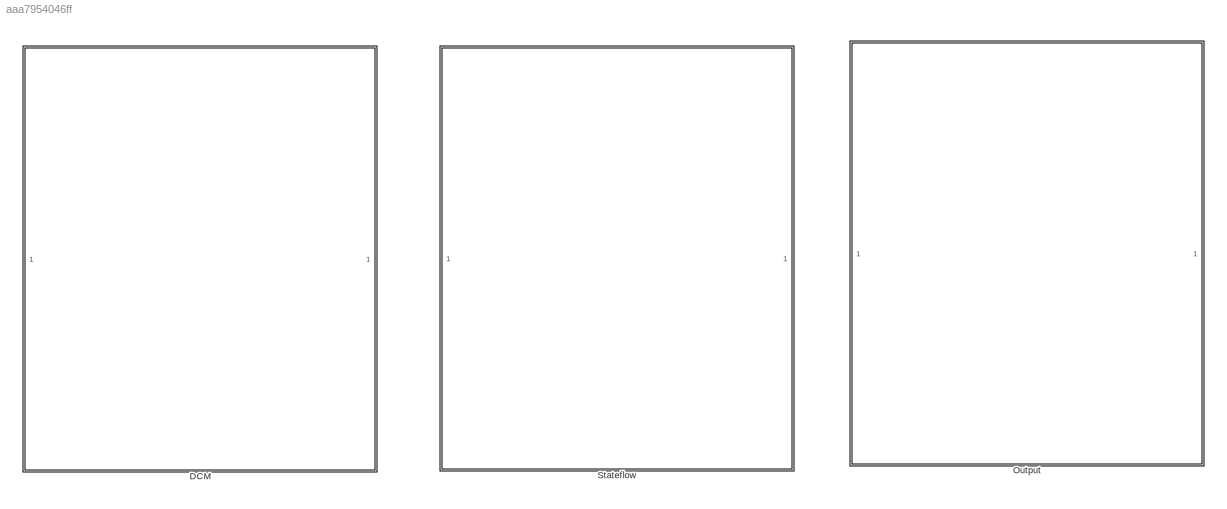
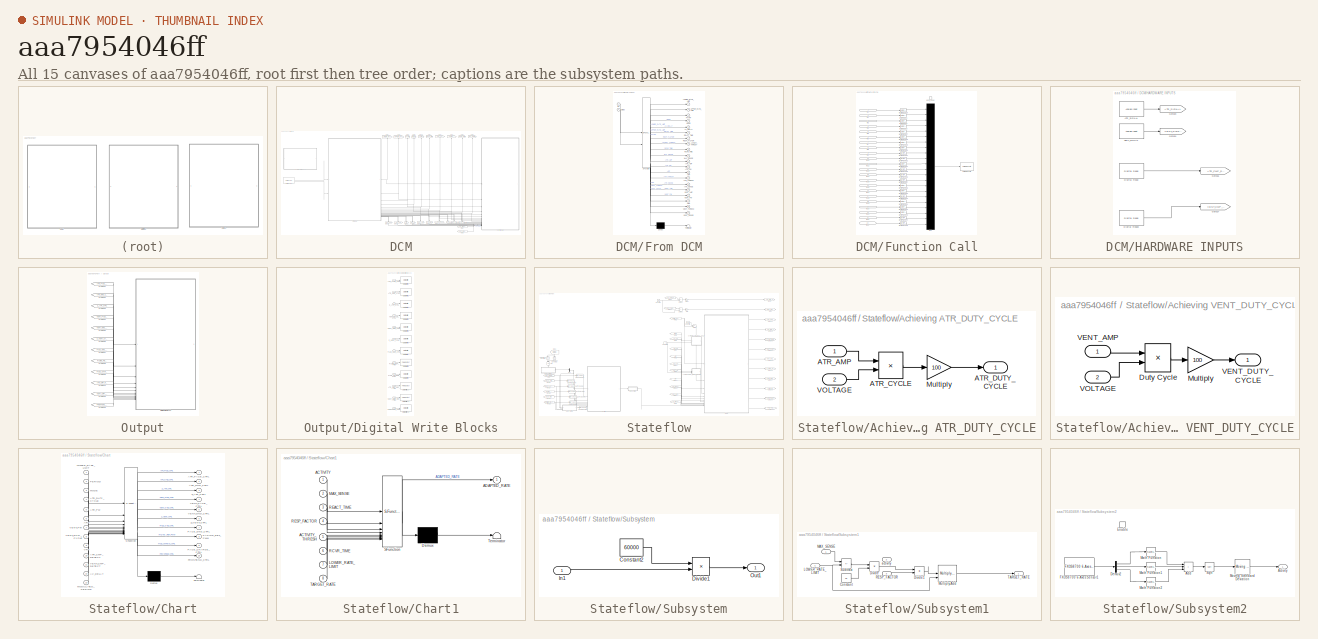
[diagram: thumbnail index - all 15 canvases of the model, root first then tree order]
MODEL slx_aaa7954046ff
KIND model
CONFIG AbsTol = auto
CONFIG EnableMultiTasking = on
CONFIG FixedStep = 1e-3
CONFIG MaxStep = auto
CONFIG MinStep = auto
CONFIG RelTol = 1e-3
CONFIG SampleTimeConstraint = Unconstrained
CONFIG SolverName = FixedStepAuto
CONFIG StartTime = 0.0
CONFIG StopTime = 10.0
BLOCK [SubSystem] DCM
BLOCK [SubSystem] DCM/From DCM
  ErrorFcn = Stateflow.Translate.translate
  PermitHierarchicalResolution = ExplicitOnly
  SFBlockType = Chart
  TreatAsAtomicUnit = on
BLOCK [Demux] DCM/From DCM/ Demux 
  Outputs = 1
BLOCK [S-Function] DCM/From DCM/ SFunction 
  EnableBusSupport = on
  FunctionName = sf_sfun
  PortCounts = [2 21]
  SFcnIsStateOwnerBlock = off
  SFunctionDeploymentMode = off
  Tag = Stateflow S-Function 1
BLOCK [Terminator] DCM/From DCM/ Terminator 
BLOCK [Outport] DCM/From DCM/ACTIVITY_THRESH
  Port = 8
BLOCK [Outport] DCM/From DCM/ARP
  Port = 13
BLOCK [Outport] DCM/From DCM/ATR_AMP
  Port = 11
BLOCK [Outport] DCM/From DCM/ATR_PW
  Port = 12
BLOCK [Outport] DCM/From DCM/ATR_SENSE
  Port = 15
BLOCK [Outport] DCM/From DCM/ATR_THRESH
  Port = 14
BLOCK [Outport] DCM/From DCM/AV_DELAY
  Port = 5
BLOCK [Outport] DCM/From DCM/LOWER_RATE_LIMIT
BLOCK [Outport] DCM/From DCM/MAX_SENSE
  Port = 10
BLOCK [Outport] DCM/From DCM/MODE
  Port = 4
BLOCK [Outport] DCM/From DCM/PVARP
  Port = 3
BLOCK [Outport] DCM/From DCM/RCVR_TIME
  Port = 9
BLOCK [Outport] DCM/From DCM/REACT_TIME
  Port = 6
BLOCK [Outport] DCM/From DCM/RESP_FACTOR
  Port = 7
BLOCK [Inport] DCM/From DCM/Rx
BLOCK [Inport] DCM/From DCM/Status
  Port = 2
BLOCK [Outport] DCM/From DCM/UPPER_RATE_LIMIT
  Port = 2
BLOCK [Outport] DCM/From DCM/VENT_AMP
  Port = 16
BLOCK [Outport] DCM/From DCM/VENT_PW
  Port = 17
BLOCK [Outport] DCM/From DCM/VENT_SENSE
  Port = 20
BLOCK [Outport] DCM/From DCM/VENT_THRESH
  Port = 19
BLOCK [Outport] DCM/From DCM/VRP
  Port = 18
BLOCK [From] DCM/From6
  GotoTag = VENT_SIGNAL
  TagVisibility = global
BLOCK [From] DCM/From7
  GotoTag = ATR_SIGNAL
  TagVisibility = global
BLOCK [SubSystem] DCM/Function Call
  TreatAsAtomicUnit = on
BLOCK [Reference] DCM/Function Call/Byte Pack 1  REF=etargetslib/Byte Pack
  SourceBlock = etargetslib/Byte Pack
  SourceType = Byte pack
BLOCK [Reference] DCM/Function Call/Byte Pack 2  REF=etargetslib/Byte Pack
  SourceBlock = etargetslib/Byte Pack
  SourceType = Byte pack
BLOCK [Reference] DCM/Function Call/Byte Pack 3  REF=etargetslib/Byte Pack
  SourceBlock = etargetslib/Byte Pack
  SourceType = Byte pack
BLOCK [Reference] DCM/Function Call/Byte Pack26  REF=etargetslib/Byte Pack
  SourceBlock = etargetslib/Byte Pack
  SourceType = Byte pack
BLOCK [Reference] DCM/Function Call/Byte Pack27  REF=etargetslib/Byte Pack
  SourceBlock = etargetslib/Byte Pack
  SourceType = Byte pack
BLOCK [Reference] DCM/Function Call/Byte Pack28  REF=etargetslib/Byte Pack
  SourceBlock = etargetslib/Byte Pack
  SourceType = Byte pack
BLOCK [Reference] DCM/Function Call/Byte Pack29  REF=etargetslib/Byte Pack
  SourceBlock = etargetslib/Byte Pack
  SourceType = Byte pack
BLOCK [Reference] DCM/Function Call/Byte Pack30  REF=etargetslib/Byte Pack
  SourceBlock = etargetslib/Byte Pack
  SourceType = Byte pack
BLOCK [Reference] DCM/Function Call/Byte Pack31  REF=etargetslib/Byte Pack
  SourceBlock = etargetslib/Byte Pack
  SourceType = Byte pack
BLOCK [Reference] DCM/Function Call/Byte Pack32  REF=etargetslib/Byte Pack
  SourceBlock = etargetslib/Byte Pack
  SourceType = Byte pack
BLOCK [Reference] DCM/Function Call/Byte Pack34  REF=etargetslib/Byte Pack
  SourceBlock = etargetslib/Byte Pack
  SourceType = Byte pack
BLOCK [Reference] DCM/Function Call/Byte Pack35  REF=etargetslib/Byte Pack
  SourceBlock = etargetslib/Byte Pack
  SourceType = Byte pack
BLOCK [Reference] DCM/Function Call/Byte Pack36  REF=etargetslib/Byte Pack
  SourceBlock = etargetslib/Byte Pack
  SourceType = Byte pack
BLOCK [Reference] DCM/Function Call/Byte Pack37  REF=etargetslib/Byte Pack
  SourceBlock = etargetslib/Byte Pack
  SourceType = Byte pack
BLOCK [Reference] DCM/Function Call/Byte Pack38  REF=etargetslib/Byte Pack
  SourceBlock = etargetslib/Byte Pack
  SourceType = Byte pack
BLOCK [Reference] DCM/Function Call/Byte Pack39  REF=etargetslib/Byte Pack
  SourceBlock = etargetslib/Byte Pack
  SourceType = Byte pack
BLOCK [Reference] DCM/Function Call/Byte Pack40  REF=etargetslib/Byte Pack
  SourceBlock = etargetslib/Byte Pack
  SourceType = Byte pack
BLOCK [Reference] DCM/Function Call/Byte Pack41  REF=etargetslib/Byte Pack
  SourceBlock = etargetslib/Byte Pack
  SourceType = Byte pack
BLOCK [Reference] DCM/Function Call/Byte Pack42  REF=etargetslib/Byte Pack
  SourceBlock = etargetslib/Byte Pack
  SourceType = Byte pack
BLOCK [Reference] DCM/Function Call/Byte Pack43  REF=etargetslib/Byte Pack
  SourceBlock = etargetslib/Byte Pack
  SourceType = Byte pack
BLOCK [Reference] DCM/Function Call/Byte Pack44  REF=etargetslib/Byte Pack
  SourceBlock = etargetslib/Byte Pack
  SourceType = Byte pack
BLOCK [Reference] DCM/Function Call/Byte Pack45  REF=etargetslib/Byte Pack
  SourceBlock = etargetslib/Byte Pack
  SourceType = Byte pack
BLOCK [Inport] DCM/Function Call/In1
  IconDisplay = Signal name
BLOCK [Inport] DCM/Function Call/In10
  IconDisplay = Signal name
  Port = 10
BLOCK [Inport] DCM/Function Call/In11
  IconDisplay = Signal name
  Port = 21
BLOCK [Inport] DCM/Function Call/In12
  IconDisplay = Signal name
  Port = 11
BLOCK [Inport] DCM/Function Call/In13
  IconDisplay = Signal name
  Port = 12
BLOCK [Inport] DCM/Function Call/In14
  IconDisplay = Signal name
  Port = 13
BLOCK [Inport] DCM/Function Call/In15
  IconDisplay = Signal name
  Port = 14
BLOCK [Inport] DCM/Function Call/In16
  IconDisplay = Signal name
  Port = 15
BLOCK [Inport] DCM/Function Call/In17
  IconDisplay = Signal name
  Port = 16
BLOCK [Inport] DCM/Function Call/In18
  IconDisplay = Signal name
  Port = 17
BLOCK [Inport] DCM/Function Call/In19
  IconDisplay = Signal name
  Port = 18
BLOCK [Inport] DCM/Function Call/In2
  IconDisplay = Signal name
  Port = 2
BLOCK [Inport] DCM/Function Call/In20
  IconDisplay = Signal name
  Port = 19
BLOCK [Inport] DCM/Function Call/In21
  IconDisplay = Signal name
  Port = 20
BLOCK [Inport] DCM/Function Call/In22
  IconDisplay = Signal name
  Port = 22
BLOCK [Inport] DCM/Function Call/In3
  IconDisplay = Signal name
  Port = 3
BLOCK [Inport] DCM/Function Call/In4
  IconDisplay = Signal name
  Port = 4
BLOCK [Inport] DCM/Function Call/In5
  IconDisplay = Signal name
  Port = 5
BLOCK [Inport] DCM/Function Call/In6
  IconDisplay = Signal name
  Port = 6
BLOCK [Inport] DCM/Function Call/In7
  IconDisplay = Signal name
  Port = 7
BLOCK [Inport] DCM/Function Call/In8
  IconDisplay = Signal name
  Port = 8
BLOCK [Inport] DCM/Function Call/In9
  IconDisplay = Signal name
  Port = 9
BLOCK [Mux] DCM/Function Call/Mux
  DisplayOption = bar
  Inputs = 22
BLOCK [Reference] DCM/Function Call/Serial Transmit  REF=frdmk64flib/Serial Transmit
  SourceBlock = frdmk64flib/Serial Transmit
  SourceType = freedomk64f.SCIWrite
BLOCK [TriggerPort] DCM/Function Call/dcm_send
  FunctionName = dcm_send
  IsSimulinkFunction = on
  StatesWhenEnabling = held
  TriggerType = function-call
  VariantControl = Variant
BLOCK [Goto] DCM/Goto 1
  GotoTag = REACT_TIME
  IconDisplay = Signal name
  NameLocation = right
  TagVisibility = global
BLOCK [Goto] DCM/Goto 2
  GotoTag = ACTIVITY_THRESH
  IconDisplay = Signal name
  NameLocation = right
  TagVisibility = global
BLOCK [Goto] DCM/Goto 25
  GotoTag = AV_DELAY
  IconDisplay = Signal name
  NameLocation = right
  TagVisibility = global
BLOCK [Goto] DCM/Goto 3
  GotoTag = RESP_FACTOR
  IconDisplay = Signal name
  NameLocation = right
  TagVisibility = global
BLOCK [Goto] DCM/Goto 4
  GotoTag = RCVR_TIME
  IconDisplay = Signal name
  NameLocation = right
  TagVisibility = global
BLOCK [Goto] DCM/Goto 6
  GotoTag = MAX_SENSE
  IconDisplay = Signal name
  NameLocation = right
  TagVisibility = global
BLOCK [Goto] DCM/Goto1
  GotoTag = LOWER_RATE_LIMIT
  IconDisplay = Signal name
  NameLocation = right
  TagVisibility = global
BLOCK [Goto] DCM/Goto10
  GotoTag = VENT_PW
  IconDisplay = Signal name
  NameLocation = left
  TagVisibility = global
BLOCK [Goto] DCM/Goto11
  GotoTag = VRP
  IconDisplay = Signal name
  NameLocation = left
  TagVisibility = global
BLOCK [Goto] DCM/Goto12
  GotoTag = ATR_THRESH
  IconDisplay = Signal name
  NameLocation = left
  TagVisibility = global
BLOCK [Goto] DCM/Goto13
  GotoTag = VENT_THRESH
  IconDisplay = Signal name
  NameLocation = left
  TagVisibility = global
BLOCK [Goto] DCM/Goto15
  GotoTag = ATR_SENSE
  IconDisplay = Signal name
  NameLocation = left
  TagVisibility = global
BLOCK [Goto] DCM/Goto18
  GotoTag = VENT_SENSE
  IconDisplay = Signal name
  NameLocation = left
  TagVisibility = global
BLOCK [Goto] DCM/Goto2
  GotoTag = UPPER_RATE_LIMIT
  IconDisplay = Signal name
  NameLocation = right
  TagVisibility = global
BLOCK [Goto] DCM/Goto3
  GotoTag = PVARP
  IconDisplay = Signal name
  NameLocation = right
  TagVisibility = global
BLOCK [Goto] DCM/Goto5
  GotoTag = MODE
  IconDisplay = Signal name
  NameLocation = right
  TagVisibility = global
BLOCK [Goto] DCM/Goto6
  GotoTag = ATR_AMP
  IconDisplay = Signal name
  NameLocation = left
  TagVisibility = global
BLOCK [Goto] DCM/Goto7
  GotoTag = ATR_PW
  IconDisplay = Signal name
  NameLocation = left
  TagVisibility = global
BLOCK [Goto] DCM/Goto8
  GotoTag = ARP
  IconDisplay = Signal name
  NameLocation = left
  TagVisibility = global
BLOCK [Goto] DCM/Goto9
  GotoTag = VENT_AMP
  IconDisplay = Signal name
  NameLocation = left
  TagVisibility = global
BLOCK [SubSystem] DCM/HARDWARE INPUTS
BLOCK [Reference] DCM/HARDWARE INPUTS/ATR_SIGNAL  REF=frdmk64flib/Analog Input
  SourceBlock = frdmk64flib/Analog Input
  SourceType = freedomk64f.AnalogInput
BLOCK [Reference] DCM/HARDWARE INPUTS/Digital Read  REF=frdmk64flib/Digital Read
  SourceBlock = frdmk64flib/Digital Read
  SourceType = freedomk64f.DigitalRead
BLOCK [Reference] DCM/HARDWARE INPUTS/Digital Read3  REF=frdmk64flib/Digital Read
  SourceBlock = frdmk64flib/Digital Read
  SourceType = freedomk64f.DigitalRead
BLOCK [Goto] DCM/HARDWARE INPUTS/Goto16
  GotoTag = ATR_CMP_DETECT
  TagVisibility = global
BLOCK [Goto] DCM/HARDWARE INPUTS/Goto17
  GotoTag = VENT_CMP_DETECT
  TagVisibility = global
BLOCK [Goto] DCM/HARDWARE INPUTS/Goto23
  GotoTag = ATR_SIGNAL
  TagVisibility = global
BLOCK [Goto] DCM/HARDWARE INPUTS/Goto24
  GotoTag = VENT_SIGNAL
  TagVisibility = global
BLOCK [Reference] DCM/HARDWARE INPUTS/VENT_SIGNAL  REF=frdmk64flib/Analog Input
  SourceBlock = frdmk64flib/Analog Input
  SourceType = freedomk64f.AnalogInput
BLOCK [Reference] DCM/Serial Receive  REF=frdmk64flib/Serial Receive
  SourceBlock = frdmk64flib/Serial Receive
  SourceType = freedomk64f.SCIRead
BLOCK [SubSystem] Output
BLOCK [SubSystem] Output/Digital Write Blocks
BLOCK [Inport] Output/Digital Write Blocks/ATR_CMP_REF_PWM
  Port = 10
BLOCK [Inport] Output/Digital Write Blocks/ATR_GND_CTRL
  Port = 2
BLOCK [Inport] Output/Digital Write Blocks/ATR_PACE_CTRL
BLOCK [Reference] Output/Digital Write Blocks/Digital Write 1  REF=frdmk64flib/Digital Write
  SourceBlock = frdmk64flib/Digital Write
  SourceType = freedomk64f.DigitalWrite
BLOCK [Reference] Output/Digital Write Blocks/Digital Write 10  REF=frdmk64flib/PWM Output
  SourceBlock = frdmk64flib/PWM Output
  SourceType = freedomk64f.PWMOutput
BLOCK [Reference] Output/Digital Write Blocks/Digital Write 11  REF=frdmk64flib/PWM Output
  SourceBlock = frdmk64flib/PWM Output
  SourceType = freedomk64f.PWMOutput
BLOCK [Reference] Output/Digital Write Blocks/Digital Write 12  REF=frdmk64flib/Digital Write
  SourceBlock = frdmk64flib/Digital Write
  SourceType = freedomk64f.DigitalWrite
BLOCK [Reference] Output/Digital Write Blocks/Digital Write 2  REF=frdmk64flib/Digital Write
  SourceBlock = frdmk64flib/Digital Write
  SourceType = freedomk64f.DigitalWrite
BLOCK [Reference] Output/Digital Write Blocks/Digital Write 3  REF=frdmk64flib/Digital Write
  SourceBlock = frdmk64flib/Digital Write
  SourceType = freedomk64f.DigitalWrite
BLOCK [Reference] Output/Digital Write Blocks/Digital Write 4  REF=frdmk64flib/Digital Write
  SourceBlock = frdmk64flib/Digital Write
  SourceType = freedomk64f.DigitalWrite
BLOCK [Reference] Output/Digital Write Blocks/Digital Write 5  REF=frdmk64flib/Digital Write
  SourceBlock = frdmk64flib/Digital Write
  SourceType = freedomk64f.DigitalWrite
BLOCK [Reference] Output/Digital Write Blocks/Digital Write 6  REF=frdmk64flib/Digital Write
  SourceBlock = frdmk64flib/Digital Write
  SourceType = freedomk64f.DigitalWrite
BLOCK [Reference] Output/Digital Write Blocks/Digital Write 7  REF=frdmk64flib/Digital Write
  SourceBlock = frdmk64flib/Digital Write
  SourceType = freedomk64f.DigitalWrite
BLOCK [Reference] Output/Digital Write Blocks/Digital Write 8  REF=frdmk64flib/PWM Output
  SourceBlock = frdmk64flib/PWM Output
  SourceType = freedomk64f.PWMOutput
BLOCK [Reference] Output/Digital Write Blocks/Digital Write 9  REF=frdmk64flib/Digital Write
  SourceBlock = frdmk64flib/Digital Write
  SourceType = freedomk64f.DigitalWrite
BLOCK [Inport] Output/Digital Write Blocks/FRONTEND_CTRL
  Port = 12
BLOCK [Inport] Output/Digital Write Blocks/PACE_CHARGE_CTRL
  Port = 9
BLOCK [Inport] Output/Digital Write Blocks/PACE_GND_CTRL
  Port = 7
BLOCK [Inport] Output/Digital Write Blocks/PACING_REF_PWM
  Port = 8
BLOCK [Inport] Output/Digital Write Blocks/VENT_CMP_REF_PWM
  OutDataTypeStr = double
  Port = 11
BLOCK [Inport] Output/Digital Write Blocks/VENT_GND_CTRL
  Port = 5
BLOCK [Inport] Output/Digital Write Blocks/VENT_PACE_CTRL
  Port = 4
BLOCK [Inport] Output/Digital Write Blocks/Z_ATR_CTRL
  Port = 3
BLOCK [Inport] Output/Digital Write Blocks/Z_VENT_CTRL
  Port = 6
BLOCK [From] Output/From101
  GotoTag = ATR_PACE_CTRL
  TagVisibility = global
BLOCK [From] Output/From102
  GotoTag = ATR_GND_CTRL
  TagVisibility = global
BLOCK [From] Output/From103
  GotoTag = Z_ATR_CTRL
  TagVisibility = global
BLOCK [From] Output/From104
  GotoTag = VENT_PACE_CTRL
  TagVisibility = global
BLOCK [From] Output/From105
  GotoTag = VENT_GND_CTRL
  TagVisibility = global
BLOCK [From] Output/From106
  GotoTag = Z_VENT_CTRL
  TagVisibility = global
BLOCK [From] Output/From107
  GotoTag = PACE_GND_CTRL
  TagVisibility = global
BLOCK [From] Output/From108
  GotoTag = PACING_REF_PWM
  TagVisibility = global
BLOCK [From] Output/From109
  GotoTag = PACE_CHARGE_CTRL
  TagVisibility = global
BLOCK [From] Output/From114
  GotoTag = ATR_CMP_REF_PWM
  TagVisibility = global
BLOCK [From] Output/From115
  GotoTag = VENT_CMP_REF_PWM
  TagVisibility = global
BLOCK [From] Output/From116
  GotoTag = FRONTEND_CTRL
  TagVisibility = global
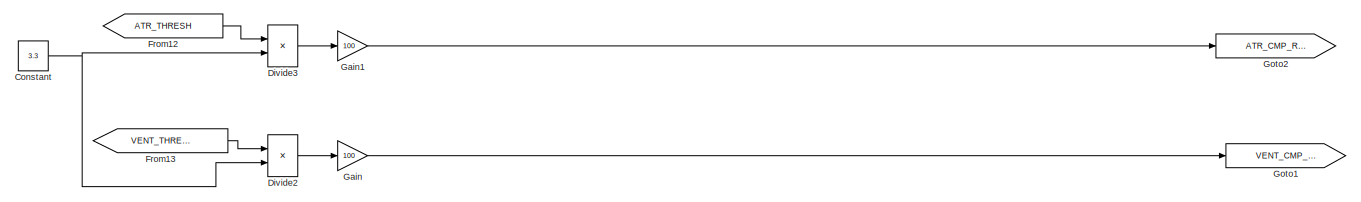
[diagram: Stateflow - part 1/4, top right region]
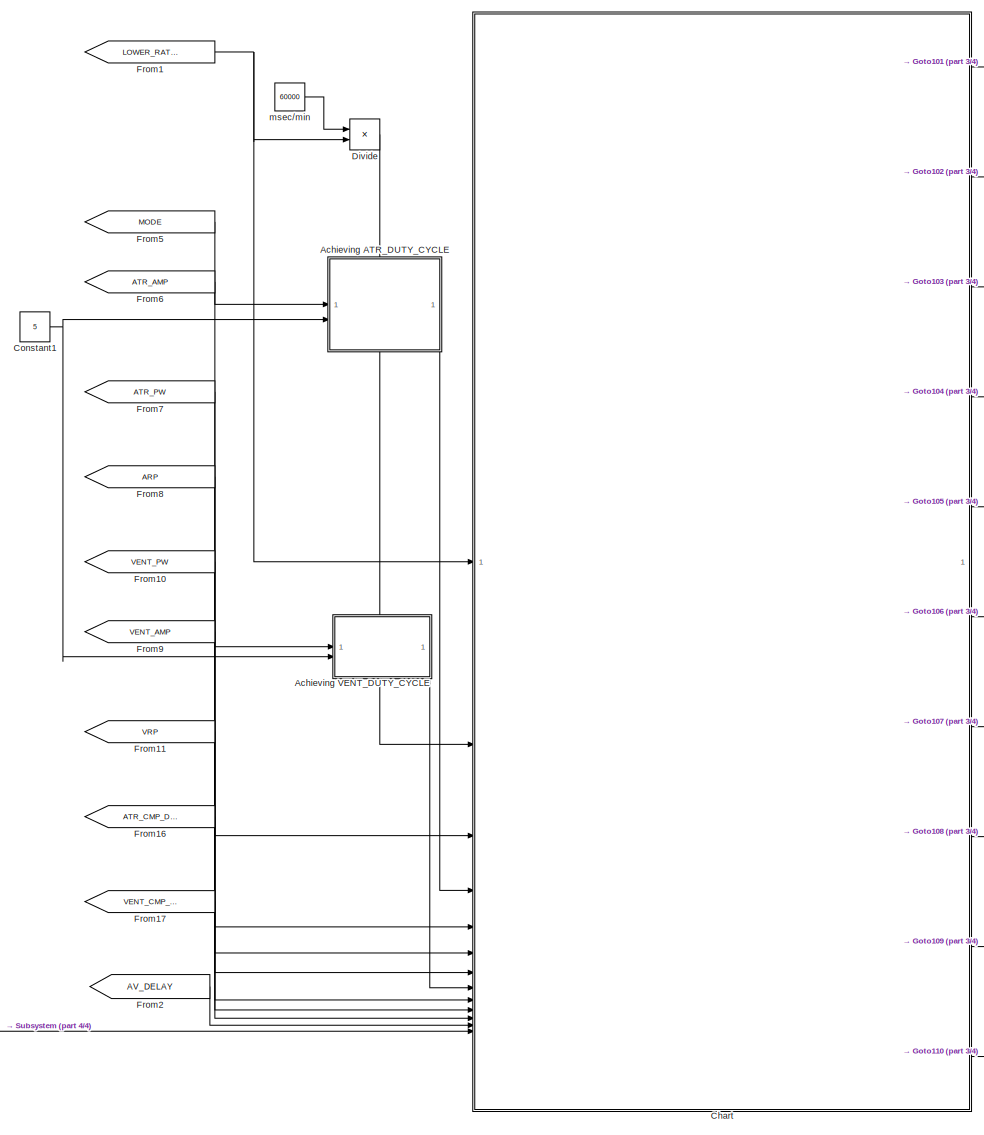
[diagram: Stateflow - part 2/4, right side, full height]
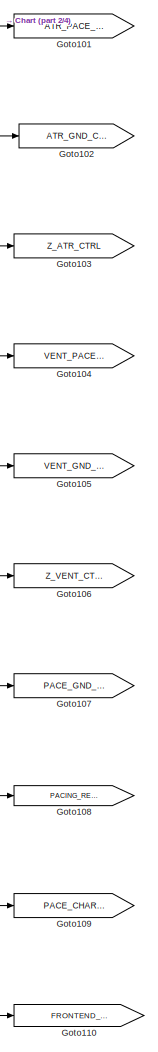
[diagram: Stateflow - part 3/4, right side, full height]
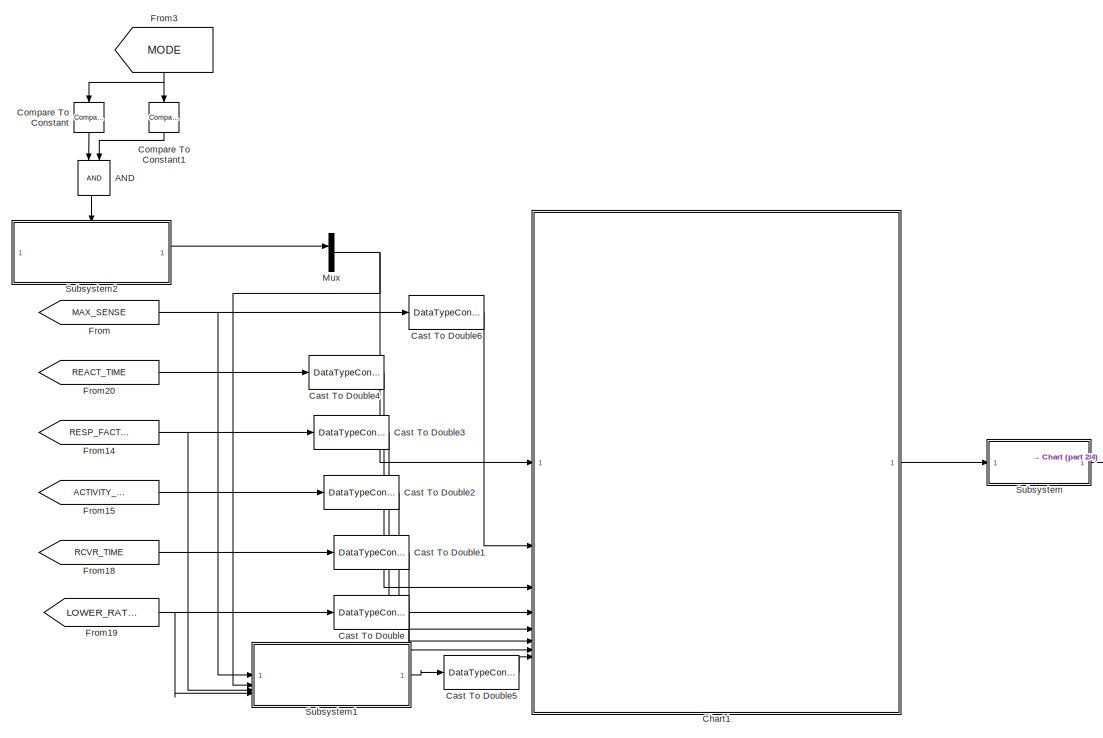
[diagram: Stateflow - part 4/4, bottom left region]
BLOCK [SubSystem] Stateflow
BLOCK [Logic] Stateflow/AND
  AllPortsSameDT = off
  IconShape = distinctive
  NameLocation = left
  OutDataTypeStr = boolean
BLOCK [SubSystem] Stateflow/Achieving ATR_DUTY_CYCLE
BLOCK [Inport] Stateflow/Achieving ATR_DUTY_CYCLE/ATR_AMP
BLOCK [Product] Stateflow/Achieving ATR_DUTY_CYCLE/ATR_CYCLE
  Inputs = */
BLOCK [Outport] Stateflow/Achieving ATR_DUTY_CYCLE/ATR_DUTY_CYCLE
  VectorParamsAs1DForOutWhenUnconnected = off
BLOCK [Gain] Stateflow/Achieving ATR_DUTY_CYCLE/Multiply
  Gain = 100
BLOCK [Inport] Stateflow/Achieving ATR_DUTY_CYCLE/VOLTAGE
  Port = 2
BLOCK [SubSystem] Stateflow/Achieving VENT_DUTY_CYCLE
BLOCK [Product] Stateflow/Achieving VENT_DUTY_CYCLE/Duty Cycle
  Inputs = */
BLOCK [Gain] Stateflow/Achieving VENT_DUTY_CYCLE/Multiply
  Gain = 100
BLOCK [Inport] Stateflow/Achieving VENT_DUTY_CYCLE/VENT_AMP
BLOCK [Outport] Stateflow/Achieving VENT_DUTY_CYCLE/VENT_DUTY_CYCLE
  VectorParamsAs1DForOutWhenUnconnected = off
BLOCK [Inport] Stateflow/Achieving VENT_DUTY_CYCLE/VOLTAGE
  Port = 2
BLOCK [DataTypeConversion] Stateflow/Cast To Double
  OutDataTypeStr = double
  RndMeth = Floor
  SaturateOnIntegerOverflow = off
BLOCK [DataTypeConversion] Stateflow/Cast To Double1
  OutDataTypeStr = double
  RndMeth = Floor
  SaturateOnIntegerOverflow = off
BLOCK [DataTypeConversion] Stateflow/Cast To Double2
  OutDataTypeStr = double
  RndMeth = Floor
  SaturateOnIntegerOverflow = off
BLOCK [DataTypeConversion] Stateflow/Cast To Double3
  OutDataTypeStr = double
  RndMeth = Floor
  SaturateOnIntegerOverflow = off
BLOCK [DataTypeConversion] Stateflow/Cast To Double4
  OutDataTypeStr = double
  RndMeth = Floor
  SaturateOnIntegerOverflow = off
BLOCK [DataTypeConversion] Stateflow/Cast To Double5
  OutDataTypeStr = double
  RndMeth = Floor
  SaturateOnIntegerOverflow = off
BLOCK [DataTypeConversion] Stateflow/Cast To Double6
  OutDataTypeStr = double
  RndMeth = Floor
  SaturateOnIntegerOverflow = off
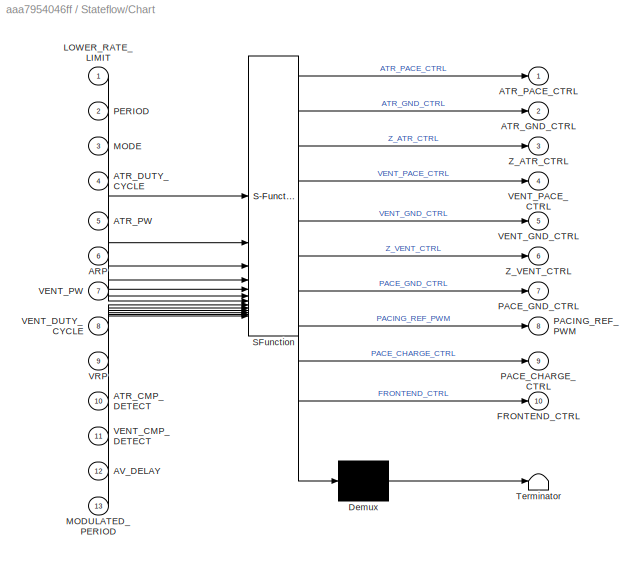
BLOCK [SubSystem] Stateflow/Chart
  ErrorFcn = Stateflow.Translate.translate
  PermitHierarchicalResolution = ExplicitOnly
  SFBlockType = Chart
  TreatAsAtomicUnit = on
BLOCK [Demux] Stateflow/Chart/ Demux 
  Outputs = 1
BLOCK [S-Function] Stateflow/Chart/ SFunction 
  EnableBusSupport = on
  FunctionName = sf_sfun
  PortCounts = [13 11]
  SFcnIsStateOwnerBlock = off
  SFunctionDeploymentMode = off
  Tag = Stateflow S-Function 3
BLOCK [Terminator] Stateflow/Chart/ Terminator 
BLOCK [Inport] Stateflow/Chart/ARP
  Port = 6
BLOCK [Inport] Stateflow/Chart/ATR_CMP_DETECT
  Port = 10
BLOCK [Inport] Stateflow/Chart/ATR_DUTY_CYCLE
  Port = 4
BLOCK [Outport] Stateflow/Chart/ATR_GND_CTRL
  Port = 2
BLOCK [Outport] Stateflow/Chart/ATR_PACE_CTRL
BLOCK [Inport] Stateflow/Chart/ATR_PW
  Port = 5
BLOCK [Inport] Stateflow/Chart/AV_DELAY
  Port = 12
BLOCK [Outport] Stateflow/Chart/FRONTEND_CTRL
  Port = 10
BLOCK [Inport] Stateflow/Chart/LOWER_RATE_LIMIT
BLOCK [Inport] Stateflow/Chart/MODE
  Port = 3
BLOCK [Inport] Stateflow/Chart/MODULATED_PERIOD
  Port = 13
BLOCK [Outport] Stateflow/Chart/PACE_CHARGE_CTRL
  Port = 9
BLOCK [Outport] Stateflow/Chart/PACE_GND_CTRL
  Port = 7
BLOCK [Outport] Stateflow/Chart/PACING_REF_PWM
  Port = 8
BLOCK [Inport] Stateflow/Chart/PERIOD
  Port = 2
BLOCK [Inport] Stateflow/Chart/VENT_CMP_DETECT
  Port = 11
BLOCK [Inport] Stateflow/Chart/VENT_DUTY_CYCLE
  Port = 8
BLOCK [Outport] Stateflow/Chart/VENT_GND_CTRL
  Port = 5
BLOCK [Outport] Stateflow/Chart/VENT_PACE_CTRL
  Port = 4
BLOCK [Inport] Stateflow/Chart/VENT_PW
  Port = 7
BLOCK [Inport] Stateflow/Chart/VRP
  Port = 9
BLOCK [Outport] Stateflow/Chart/Z_ATR_CTRL
  Port = 3
BLOCK [Outport] Stateflow/Chart/Z_VENT_CTRL
  Port = 6
BLOCK [SubSystem] Stateflow/Chart1
  ErrorFcn = Stateflow.Translate.translate
  PermitHierarchicalResolution = ExplicitOnly
  SFBlockType = Chart
  TreatAsAtomicUnit = on
BLOCK [Demux] Stateflow/Chart1/ Demux 
  Outputs = 1
BLOCK [S-Function] Stateflow/Chart1/ SFunction 
  EnableBusSupport = on
  FunctionName = sf_sfun
  PortCounts = [8 2]
  SFcnIsStateOwnerBlock = off
  SFunctionDeploymentMode = off
  Tag = Stateflow S-Function 4
BLOCK [Terminator] Stateflow/Chart1/ Terminator 
BLOCK [Inport] Stateflow/Chart1/ACTIVITY
BLOCK [Inport] Stateflow/Chart1/ACTIVITY_THRESH
  Port = 5
BLOCK [Outport] Stateflow/Chart1/ADAPTED_RATE
  VectorParamsAs1DForOutWhenUnconnected = off
BLOCK [Inport] Stateflow/Chart1/LOWER_RATE_LIMIT
  Port = 7
BLOCK [Inport] Stateflow/Chart1/MAX_SENSE
  Port = 2
BLOCK [Inport] Stateflow/Chart1/RCVR_TIME
  Port = 6
BLOCK [Inport] Stateflow/Chart1/REACT_TIME
  Port = 3
BLOCK [Inport] Stateflow/Chart1/RESP_FACTOR
  Port = 4
BLOCK [Inport] Stateflow/Chart1/TARGET_RATE
  Port = 8
BLOCK [Reference] Stateflow/Compare To Constant  REF=simulink/Logic and Bit
Operations/Compare
To Constant
  NameLocation = left
  SourceBlock = simulink/Logic and Bit\nOperations/Compare\nTo Constant
  SourceType = Compare To Constant
BLOCK [Reference] Stateflow/Compare To Constant1  REF=simulink/Logic and Bit
Operations/Compare
To Constant
  NameLocation = left
  SourceBlock = simulink/Logic and Bit\nOperations/Compare\nTo Constant
  SourceType = Compare To Constant
BLOCK [Constant] Stateflow/Constant
  Value = 3.3
BLOCK [Constant] Stateflow/Constant1
  Value = 5
BLOCK [Product] Stateflow/Divide
  Inputs = */
BLOCK [Product] Stateflow/Divide2
  Inputs = */
BLOCK [Product] Stateflow/Divide3
  Inputs = */
BLOCK [From] Stateflow/From
  GotoTag = MAX_SENSE
  TagVisibility = global
BLOCK [From] Stateflow/From1
  GotoTag = LOWER_RATE_LIMIT
  TagVisibility = global
BLOCK [From] Stateflow/From10
  GotoTag = VENT_PW
  TagVisibility = global
BLOCK [From] Stateflow/From11
  GotoTag = VRP
  TagVisibility = global
BLOCK [From] Stateflow/From12
  GotoTag = ATR_THRESH
  TagVisibility = global
BLOCK [From] Stateflow/From13
  GotoTag = VENT_THRESH
  TagVisibility = global
BLOCK [From] Stateflow/From14
  GotoTag = RESP_FACTOR
  TagVisibility = global
BLOCK [From] Stateflow/From15
  GotoTag = ACTIVITY_THRESH
  TagVisibility = global
BLOCK [From] Stateflow/From16
  GotoTag = ATR_CMP_DETECT
  TagVisibility = global
BLOCK [From] Stateflow/From17
  GotoTag = VENT_CMP_DETECT
  TagVisibility = global
BLOCK [From] Stateflow/From18
  GotoTag = RCVR_TIME
  TagVisibility = global
BLOCK [From] Stateflow/From19
  GotoTag = LOWER_RATE_LIMIT
  TagVisibility = global
BLOCK [From] Stateflow/From2
  GotoTag = AV_DELAY
  TagVisibility = global
BLOCK [From] Stateflow/From20
  GotoTag = REACT_TIME
  TagVisibility = global
BLOCK [From] Stateflow/From3
  GotoTag = MODE
  NameLocation = left
  TagVisibility = global
BLOCK [From] Stateflow/From5
  GotoTag = MODE
  TagVisibility = global
BLOCK [From] Stateflow/From6
  GotoTag = ATR_AMP
  TagVisibility = global
BLOCK [From] Stateflow/From7
  GotoTag = ATR_PW
  TagVisibility = global
BLOCK [From] Stateflow/From8
  GotoTag = ARP
  TagVisibility = global
BLOCK [From] Stateflow/From9
  GotoTag = VENT_AMP
  TagVisibility = global
BLOCK [Gain] Stateflow/Gain
  Gain = 100
BLOCK [Gain] Stateflow/Gain1
  Gain = 100
BLOCK [Goto] Stateflow/Goto1
  GotoTag = VENT_CMP_REF_PWM
  IconDisplay = Signal name
  TagVisibility = global
BLOCK [Goto] Stateflow/Goto101
  GotoTag = ATR_PACE_CTRL
  IconDisplay = Signal name
  TagVisibility = global
BLOCK [Goto] Stateflow/Goto102
  GotoTag = ATR_GND_CTRL
  IconDisplay = Signal name
  TagVisibility = global
BLOCK [Goto] Stateflow/Goto103
  GotoTag = Z_ATR_CTRL
  IconDisplay = Signal name
  TagVisibility = global
BLOCK [Goto] Stateflow/Goto104
  GotoTag = VENT_PACE_CTRL
  IconDisplay = Signal name
  TagVisibility = global
BLOCK [Goto] Stateflow/Goto105
  GotoTag = VENT_GND_CTRL
  IconDisplay = Signal name
  TagVisibility = global
BLOCK [Goto] Stateflow/Goto106
  GotoTag = Z_VENT_CTRL
  IconDisplay = Signal name
  TagVisibility = global
BLOCK [Goto] Stateflow/Goto107
  GotoTag = PACE_GND_CTRL
  IconDisplay = Signal name
  TagVisibility = global
BLOCK [Goto] Stateflow/Goto108
  GotoTag = PACING_REF_PWM
  IconDisplay = Signal name
  TagVisibility = global
BLOCK [Goto] Stateflow/Goto109
  GotoTag = PACE_CHARGE_CTRL
  IconDisplay = Signal name
  TagVisibility = global
BLOCK [Goto] Stateflow/Goto110
  GotoTag = FRONTEND_CTRL
  TagVisibility = global
BLOCK [Goto] Stateflow/Goto2
  GotoTag = ATR_CMP_REF_PWM
  IconDisplay = Signal name
  TagVisibility = global
BLOCK [Mux] Stateflow/Mux
  DisplayOption = bar
  Inputs = 1
BLOCK [SubSystem] Stateflow/Subsystem
BLOCK [Constant] Stateflow/Subsystem/Constant2
  Value = 60000
BLOCK [Product] Stateflow/Subsystem/Divide1
  Inputs = */
BLOCK [Inport] Stateflow/Subsystem/In1
BLOCK [Outport] Stateflow/Subsystem/Out1
BLOCK [SubSystem] Stateflow/Subsystem1
BLOCK [Constant] Stateflow/Subsystem1/Constant
  Value = 16
BLOCK [Product] Stateflow/Subsystem1/Divide
  Inputs = */
BLOCK [Product] Stateflow/Subsystem1/Divide1
  Inputs = */
BLOCK [Inport] Stateflow/Subsystem1/LOWER_RATE_LIMIT
  Port = 4
BLOCK [Inport] Stateflow/Subsystem1/MAX_SENSE
BLOCK [Reference] Stateflow/Subsystem1/Multiply-Add  REF=hdlsllib/HDL Operations/Multiply-Add
  SourceBlock = hdlsllib/HDL Operations/Multiply-Add
  SourceType = Multiply-Add
BLOCK [Inport] Stateflow/Subsystem1/RESP_FACTOR
  Port = 3
BLOCK [Sum] Stateflow/Subsystem1/Subtract
  IconShape = rectangular
  Inputs = +-
BLOCK [Outport] Stateflow/Subsystem1/TARGET_RATE
  OutDataTypeStr = uint16
  SourceOfInitialOutputValue = Input signal
BLOCK [Inport] Stateflow/Subsystem1/activity
  Port = 2
BLOCK [SubSystem] Stateflow/Subsystem2
BLOCK [Outport] Stateflow/Subsystem2/Activity
  SourceOfInitialOutputValue = Input signal
BLOCK [Sum] Stateflow/Subsystem2/Add
  IconShape = rectangular
  Inputs = +++
BLOCK [Demux] Stateflow/Subsystem2/Demux2
  Outputs = 3
BLOCK [EnablePort] Stateflow/Subsystem2/Enable
BLOCK [Reference] Stateflow/Subsystem2/FXOS8700 6-Axes Sensor1  REF=frdmk64flib/FXOS8700 6-Axes Sensor
  SourceBlock = frdmk64flib/FXOS8700 6-Axes Sensor
  SourceType = freedomk64f.fxos8700
BLOCK [Math] Stateflow/Subsystem2/Math Function
  Operator = magnitude^2
  OutDataTypeStr = double
  SignedPower = on
BLOCK [Math] Stateflow/Subsystem2/Math Function1
  Operator = magnitude^2
  OutDataTypeStr = double
  SignedPower = on
BLOCK [Math] Stateflow/Subsystem2/Math Function2
  Operator = magnitude^2
  OutDataTypeStr = double
  SignedPower = on
BLOCK [Reference] Stateflow/Subsystem2/Moving Standard Deviation  REF=dspstat3/Moving
Standard
Deviation
  SourceBlock = dspstat3/Moving\nStandard\nDeviation
  SourceType = dsp.simulink.MovingStandardDeviation
BLOCK [Sqrt] Stateflow/Subsystem2/Sqrt
BLOCK [Constant] Stateflow/msec//min
  LockScale = on
  OutDataTypeStr = double
  Value = 60000
NET DCM/From DCM:1 -> DCM/Function Call:1, DCM/Goto1:1
NET DCM/From DCM:10 -> DCM/Function Call:10, DCM/Goto 6:1
NET DCM/From DCM:11 -> DCM/Function Call:11, DCM/Goto6:1
NET DCM/From DCM:12 -> DCM/Function Call:12, DCM/Goto7:1
NET DCM/From DCM:13 -> DCM/Function Call:13, DCM/Goto8:1
NET DCM/From DCM:14 -> DCM/Function Call:14, DCM/Goto12:1
NET DCM/From DCM:15 -> DCM/Function Call:15, DCM/Goto15:1
NET DCM/From DCM:16 -> DCM/Function Call:16, DCM/Goto9:1
NET DCM/From DCM:17 -> DCM/Function Call:17, DCM/Goto10:1
NET DCM/From DCM:18 -> DCM/Function Call:18, DCM/Goto11:1
NET DCM/From DCM:19 -> DCM/Function Call:19, DCM/Goto13:1
NET DCM/From DCM:2 -> DCM/Function Call:2, DCM/Goto2:1
NET DCM/From DCM:20 -> DCM/Function Call:20, DCM/Goto18:1
NET DCM/From DCM:3 -> DCM/Function Call:3, DCM/Goto3:1
NET DCM/From DCM:4 -> DCM/Function Call:4, DCM/Goto5:1
NET DCM/From DCM:5 -> DCM/Function Call:5, DCM/Goto 25:1
NET DCM/From DCM:6 -> DCM/Function Call:6, DCM/Goto 1:1
NET DCM/From DCM:7 -> DCM/Function Call:7, DCM/Goto 3:1
NET DCM/From DCM:8 -> DCM/Function Call:8, DCM/Goto 2:1
NET DCM/From DCM:9 -> DCM/Function Call:9, DCM/Goto 4:1
LINE DCM/From6:1 -> DCM/Function Call:22
LINE DCM/From7:1 -> DCM/Function Call:21
LINE DCM/Function Call/Byte Pack 1:1 -> DCM/Function Call/Mux:2
LINE DCM/Function Call/Byte Pack 2:1 -> DCM/Function Call/Mux:3
LINE DCM/Function Call/Byte Pack 3:1 -> DCM/Function Call/Mux:4
LINE DCM/Function Call/Byte Pack26:1 -> DCM/Function Call/Mux:1
LINE DCM/Function Call/Byte Pack27:1 -> DCM/Function Call/Mux:5
LINE DCM/Function Call/Byte Pack28:1 -> DCM/Function Call/Mux:6
LINE DCM/Function Call/Byte Pack29:1 -> DCM/Function Call/Mux:7
LINE DCM/Function Call/Byte Pack30:1 -> DCM/Function Call/Mux:8
LINE DCM/Function Call/Byte Pack31:1 -> DCM/Function Call/Mux:9
LINE DCM/Function Call/Byte Pack32:1 -> DCM/Function Call/Mux:10
LINE DCM/Function Call/Byte Pack34:1 -> DCM/Function Call/Mux:11
LINE DCM/Function Call/Byte Pack35:1 -> DCM/Function Call/Mux:12
LINE DCM/Function Call/Byte Pack36:1 -> DCM/Function Call/Mux:13
LINE DCM/Function Call/Byte Pack37:1 -> DCM/Function Call/Mux:14
LINE DCM/Function Call/Byte Pack38:1 -> DCM/Function Call/Mux:15
LINE DCM/Function Call/Byte Pack39:1 -> DCM/Function Call/Mux:16
LINE DCM/Function Call/Byte Pack40:1 -> DCM/Function Call/Mux:17
LINE DCM/Function Call/Byte Pack41:1 -> DCM/Function Call/Mux:18
LINE DCM/Function Call/Byte Pack42:1 -> DCM/Function Call/Mux:19
LINE DCM/Function Call/Byte Pack43:1 -> DCM/Function Call/Mux:20
LINE DCM/Function Call/Byte Pack44:1 -> DCM/Function Call/Mux:21
LINE DCM/Function Call/Byte Pack45:1 -> DCM/Function Call/Mux:22
LINE DCM/Function Call/In10:1 -> DCM/Function Call/Byte Pack32:1
LINE DCM/Function Call/In11:1 -> DCM/Function Call/Byte Pack44:1
LINE DCM/Function Call/In12:1 -> DCM/Function Call/Byte Pack34:1
LINE DCM/Function Call/In13:1 -> DCM/Function Call/Byte Pack35:1
LINE DCM/Function Call/In14:1 -> DCM/Function Call/Byte Pack36:1
LINE DCM/Function Call/In15:1 -> DCM/Function Call/Byte Pack37:1
LINE DCM/Function Call/In16:1 -> DCM/Function Call/Byte Pack38:1
LINE DCM/Function Call/In17:1 -> DCM/Function Call/Byte Pack39:1
LINE DCM/Function Call/In18:1 -> DCM/Function Call/Byte Pack40:1
LINE DCM/Function Call/In19:1 -> DCM/Function Call/Byte Pack41:1
LINE DCM/Function Call/In1:1 -> DCM/Function Call/Byte Pack 1:1
LINE DCM/Function Call/In20:1 -> DCM/Function Call/Byte Pack42:1
LINE DCM/Function Call/In21:1 -> DCM/Function Call/Byte Pack43:1
LINE DCM/Function Call/In22:1 -> DCM/Function Call/Byte Pack45:1
LINE DCM/Function Call/In2:1 -> DCM/Function Call/Byte Pack 2:1
LINE DCM/Function Call/In3:1 -> DCM/Function Call/Byte Pack 3:1
LINE DCM/Function Call/In4:1 -> DCM/Function Call/Byte Pack26:1
LINE DCM/Function Call/In5:1 -> DCM/Function Call/Byte Pack27:1
LINE DCM/Function Call/In6:1 -> DCM/Function Call/Byte Pack28:1
LINE DCM/Function Call/In7:1 -> DCM/Function Call/Byte Pack29:1
LINE DCM/Function Call/In8:1 -> DCM/Function Call/Byte Pack30:1
LINE DCM/Function Call/In9:1 -> DCM/Function Call/Byte Pack31:1
LINE DCM/Function Call/Mux:1 -> DCM/Function Call/Serial Transmit:1
LINE DCM/HARDWARE INPUTS/ATR_SIGNAL:1 -> DCM/HARDWARE INPUTS/Goto23:1
LINE DCM/HARDWARE INPUTS/Digital Read3:1 -> DCM/HARDWARE INPUTS/Goto17:1
LINE DCM/HARDWARE INPUTS/Digital Read:1 -> DCM/HARDWARE INPUTS/Goto16:1
LINE DCM/HARDWARE INPUTS/VENT_SIGNAL:1 -> DCM/HARDWARE INPUTS/Goto24:1
LINE DCM/Serial Receive:1 -> DCM/From DCM:1
LINE DCM/Serial Receive:2 -> DCM/From DCM:2
LINE Output/Digital Write Blocks/ATR_CMP_REF_PWM:1 -> Output/Digital Write Blocks/Digital Write 10:1
LINE Output/Digital Write Blocks/ATR_GND_CTRL:1 -> Output/Digital Write Blocks/Digital Write 2:1
LINE Output/Digital Write Blocks/ATR_PACE_CTRL:1 -> Output/Digital Write Blocks/Digital Write 1:1
LINE Output/Digital Write Blocks/FRONTEND_CTRL:1 -> Output/Digital Write Blocks/Digital Write 12:1
LINE Output/Digital Write Blocks/PACE_CHARGE_CTRL:1 -> Output/Digital Write Blocks/Digital Write 9:1
LINE Output/Digital Write Blocks/PACE_GND_CTRL:1 -> Output/Digital Write Blocks/Digital Write 7:1
LINE Output/Digital Write Blocks/PACING_REF_PWM:1 -> Output/Digital Write Blocks/Digital Write 8:1
LINE Output/Digital Write Blocks/VENT_CMP_REF_PWM:1 -> Output/Digital Write Blocks/Digital Write 11:1
LINE Output/Digital Write Blocks/VENT_GND_CTRL:1 -> Output/Digital Write Blocks/Digital Write 5:1
LINE Output/Digital Write Blocks/VENT_PACE_CTRL:1 -> Output/Digital Write Blocks/Digital Write 4:1
LINE Output/Digital Write Blocks/Z_ATR_CTRL:1 -> Output/Digital Write Blocks/Digital Write 3:1
LINE Output/Digital Write Blocks/Z_VENT_CTRL:1 -> Output/Digital Write Blocks/Digital Write 6:1
LINE Output/From101:1 -> Output/Digital Write Blocks:1
LINE Output/From102:1 -> Output/Digital Write Blocks:2
LINE Output/From103:1 -> Output/Digital Write Blocks:3
LINE Output/From104:1 -> Output/Digital Write Blocks:4
LINE Output/From105:1 -> Output/Digital Write Blocks:5
LINE Output/From106:1 -> Output/Digital Write Blocks:6
LINE Output/From107:1 -> Output/Digital Write Blocks:7
LINE Output/From108:1 -> Output/Digital Write Blocks:8
LINE Output/From109:1 -> Output/Digital Write Blocks:9
LINE Output/From114:1 -> Output/Digital Write Blocks:10
LINE Output/From115:1 -> Output/Digital Write Blocks:11
LINE Output/From116:1 -> Output/Digital Write Blocks:12
LINE Stateflow/AND:1 -> Stateflow/Subsystem2:enable
LINE Stateflow/Achieving ATR_DUTY_CYCLE/ATR_AMP:1 -> Stateflow/Achieving ATR_DUTY_CYCLE/ATR_CYCLE:1
LINE Stateflow/Achieving ATR_DUTY_CYCLE/ATR_CYCLE:1 -> Stateflow/Achieving ATR_DUTY_CYCLE/Multiply:1
LINE Stateflow/Achieving ATR_DUTY_CYCLE/Multiply:1 -> Stateflow/Achieving ATR_DUTY_CYCLE/ATR_DUTY_CYCLE:1
LINE Stateflow/Achieving ATR_DUTY_CYCLE/VOLTAGE:1 -> Stateflow/Achieving ATR_DUTY_CYCLE/ATR_CYCLE:2
LINE Stateflow/Achieving ATR_DUTY_CYCLE:1 -> Stateflow/Chart:4
LINE Stateflow/Achieving VENT_DUTY_CYCLE/Duty Cycle:1 -> Stateflow/Achieving VENT_DUTY_CYCLE/Multiply:1
LINE Stateflow/Achieving VENT_DUTY_CYCLE/Multiply:1 -> Stateflow/Achieving VENT_DUTY_CYCLE/VENT_DUTY_CYCLE:1
LINE Stateflow/Achieving VENT_DUTY_CYCLE/VENT_AMP:1 -> Stateflow/Achieving VENT_DUTY_CYCLE/Duty Cycle:1
LINE Stateflow/Achieving VENT_DUTY_CYCLE/VOLTAGE:1 -> Stateflow/Achieving VENT_DUTY_CYCLE/Duty Cycle:2
LINE Stateflow/Achieving VENT_DUTY_CYCLE:1 -> Stateflow/Chart:8
LINE Stateflow/Cast To Double1:1 -> Stateflow/Chart1:6
LINE Stateflow/Cast To Double2:1 -> Stateflow/Chart1:5
LINE Stateflow/Cast To Double3:1 -> Stateflow/Chart1:4
LINE Stateflow/Cast To Double4:1 -> Stateflow/Chart1:3
LINE Stateflow/Cast To Double5:1 -> Stateflow/Chart1:8
LINE Stateflow/Cast To Double6:1 -> Stateflow/Chart1:2
LINE Stateflow/Cast To Double:1 -> Stateflow/Chart1:7
LINE Stateflow/Chart1:1 -> Stateflow/Subsystem:1
LINE Stateflow/Chart:1 -> Stateflow/Goto101:1
LINE Stateflow/Chart:10 -> Stateflow/Goto110:1
LINE Stateflow/Chart:2 -> Stateflow/Goto102:1
LINE Stateflow/Chart:3 -> Stateflow/Goto103:1
LINE Stateflow/Chart:4 -> Stateflow/Goto104:1
LINE Stateflow/Chart:5 -> Stateflow/Goto105:1
LINE Stateflow/Chart:6 -> Stateflow/Goto106:1
LINE Stateflow/Chart:7 -> Stateflow/Goto107:1
LINE Stateflow/Chart:8 -> Stateflow/Goto108:1
LINE Stateflow/Chart:9 -> Stateflow/Goto109:1
LINE Stateflow/Compare To Constant1:1 -> Stateflow/AND:2
LINE Stateflow/Compare To Constant:1 -> Stateflow/AND:1
NET Stateflow/Constant1:1 -> Stateflow/Achieving ATR_DUTY_CYCLE:2, Stateflow/Achieving VENT_DUTY_CYCLE:2
NET Stateflow/Constant:1 -> Stateflow/Divide2:2, Stateflow/Divide3:2
LINE Stateflow/Divide2:1 -> Stateflow/Gain:1
LINE Stateflow/Divide3:1 -> Stateflow/Gain1:1
LINE Stateflow/Divide:1 -> Stateflow/Chart:2
LINE Stateflow/From10:1 -> Stateflow/Chart:7
LINE Stateflow/From11:1 -> Stateflow/Chart:9
LINE Stateflow/From12:1 -> Stateflow/Divide3:1
LINE Stateflow/From13:1 -> Stateflow/Divide2:1
NET Stateflow/From14:1 -> Stateflow/Cast To Double3:1, Stateflow/Subsystem1:3
LINE Stateflow/From15:1 -> Stateflow/Cast To Double2:1
LINE Stateflow/From16:1 -> Stateflow/Chart:10
LINE Stateflow/From17:1 -> Stateflow/Chart:11
LINE Stateflow/From18:1 -> Stateflow/Cast To Double1:1
NET Stateflow/From19:1 -> Stateflow/Cast To Double:1, Stateflow/Subsystem1:4
NET Stateflow/From1:1 -> Stateflow/Chart:1, Stateflow/Divide:2
LINE Stateflow/From20:1 -> Stateflow/Cast To Double4:1
LINE Stateflow/From2:1 -> Stateflow/Chart:12
NET Stateflow/From3:1 -> Stateflow/Compare To Constant1:1, Stateflow/Compare To Constant:1
LINE Stateflow/From5:1 -> Stateflow/Chart:3
LINE Stateflow/From6:1 -> Stateflow/Achieving ATR_DUTY_CYCLE:1
LINE Stateflow/From7:1 -> Stateflow/Chart:5
LINE Stateflow/From8:1 -> Stateflow/Chart:6
LINE Stateflow/From9:1 -> Stateflow/Achieving VENT_DUTY_CYCLE:1
NET Stateflow/From:1 -> Stateflow/Cast To Double6:1, Stateflow/Subsystem1:1
LINE Stateflow/Gain1:1 -> Stateflow/Goto2:1
LINE Stateflow/Gain:1 -> Stateflow/Goto1:1
NET Stateflow/Mux:1 -> Stateflow/Chart1:1, Stateflow/Subsystem1:2
LINE Stateflow/Subsystem/Constant2:1 -> Stateflow/Subsystem/Divide1:1
LINE Stateflow/Subsystem/Divide1:1 -> Stateflow/Subsystem/Out1:1
LINE Stateflow/Subsystem/In1:1 -> Stateflow/Subsystem/Divide1:2
LINE Stateflow/Subsystem1/Constant:1 -> Stateflow/Subsystem1/Divide:2
LINE Stateflow/Subsystem1/Divide1:1 -> Stateflow/Subsystem1/Multiply-Add:1
LINE Stateflow/Subsystem1/Divide:1 -> Stateflow/Subsystem1/Divide1:1
NET Stateflow/Subsystem1/LOWER_RATE_LIMIT:1 -> Stateflow/Subsystem1/Multiply-Add:3, Stateflow/Subsystem1/Subtract:2
LINE Stateflow/Subsystem1/MAX_SENSE:1 -> Stateflow/Subsystem1/Subtract:1
LINE Stateflow/Subsystem1/Multiply-Add:1 -> Stateflow/Subsystem1/TARGET_RATE:1
LINE Stateflow/Subsystem1/RESP_FACTOR:1 -> Stateflow/Subsystem1/Divide1:2
LINE Stateflow/Subsystem1/Subtract:1 -> Stateflow/Subsystem1/Divide:1
LINE Stateflow/Subsystem1:1 -> Stateflow/Cast To Double5:1
LINE Stateflow/Subsystem2/Add:1 -> Stateflow/Subsystem2/Sqrt:1
LINE Stateflow/Subsystem2/Demux2:1 -> Stateflow/Subsystem2/Math Function:1
LINE Stateflow/Subsystem2/Demux2:2 -> Stateflow/Subsystem2/Math Function1:1
LINE Stateflow/Subsystem2/Demux2:3 -> Stateflow/Subsystem2/Math Function2:1
LINE Stateflow/Subsystem2/FXOS8700 6-Axes Sensor1:1 -> Stateflow/Subsystem2/Demux2:1
LINE Stateflow/Subsystem2/Math Function1:1 -> Stateflow/Subsystem2/Add:2
LINE Stateflow/Subsystem2/Math Function2:1 -> Stateflow/Subsystem2/Add:3
LINE Stateflow/Subsystem2/Math Function:1 -> Stateflow/Subsystem2/Add:1
LINE Stateflow/Subsystem2/Moving Standard Deviation:1 -> Stateflow/Subsystem2/Activity:1
LINE Stateflow/Subsystem2/Sqrt:1 -> Stateflow/Subsystem2/Moving Standard Deviation:1
LINE Stateflow/Subsystem2:1 -> Stateflow/Mux:1
LINE Stateflow/Subsystem:1 -> Stateflow/Chart:13
LINE Stateflow/msec//min:1 -> Stateflow/Divide:1
note: NET lines group one-source signal fan-out (src -> all destinations, sorted); 1:1 wires keep LINE
CHART DCM/From DCM states=5 transitions=10
  STATE_LABEL 'ECHO_PARAM2\nentry:\ndcm_send();'
  STATE_LABEL 'Default \n%Setting values to variables if\n%not initialized in DCM\nentry:\n%GENERAL\nMODE = 7;\nLOWER_RATE_LIMIT = 60;\nUPPER_RATE_LIMIT = 120;\nPVARP = 250;\nAV_DELAY = 150;\nREACT_TIME = 50;\nRESP_FACTOR = 16;\nACTIVITY_THRESH = 0.2;\nRCVR_TIME = 60;\nMAX_SENSE = 180;\n%ATRIUM\nATR_AMP = 600;\nATR_PW = 10;\nARP = 200;\nATR_THRESH = 1.8;\nATR_SENSE = 800;\n%VENTRICLE\nVENT_AMP = 600;\nVENT_PW = 10;\nVRP = 200;\nVENT_THR...<+29ch>'
  STATE_LABEL "SET_PARAM\nentry:\nMODE = typecast(Rx(3:4), 'uint16');\nLOWER_RATE_LIMIT = typecast(Rx(5:6), 'uint16');\nUPPER_RATE_LIMIT = typecast(Rx(7:8), 'uint16');\nPVARP = typecast(Rx(9:10), 'uint16');\nAV_DELAY = typecast(Rx(11:12), 'uint16');\nREACT_TIME = typecast(Rx(13:14), 'uint16');\nRESP_FACTOR = typecast(Rx(15:16), 'uint16');\nACTIVITY_THRESH = typecast(Rx(17:24), 'double');\nRCVR_TIME = typecast(Rx(25:26), '...<+478ch>"
  STATE_LABEL 'STANDBY'
  STATE_LABEL 'ECHO_PARAM\nentry:\ndcm_send();'
CHART Stateflow/Chart states=34 transitions=91
  STATE_LABEL 'Start'
  STATE_LABEL 'AOO'
  STATE_LABEL 'CHARGING\nduring:\n%Begin Charging C22 Capacitor\nATR_PACE_CTRL = LOW\nVENT_PACE_CTRL = LOW\nPACING_REF_PWM = ATR_DUTY_CYCLE\nPACE_CHARGE_CTRL = HIGH\n%Begin Discharging C21 Blocking Capacitor\nPACE_GND_CTRL = HIGH\nVENT_PACE_CTRL = LOW\nZ_ATR_CTRL = LOW\nZ_VENT_CTRL = LOW\nATR_PACE_CTRL = LOW\nATR_GND_CTRL = HIGH\nVENT_GND_CTRL = LOW'  <repeated x4 — deduplicated; at blocks: Chart>
  STATE_LABEL 'DISCHARGING\nduring:\n%Discharge C22 into Atrium (AtrialPacing)\n%Begin Charging C21 Blocking Capacitor\nPACE_CHARGE_CTRL = LOW\nPACE_GND_CTRL = HIGH\nATR_PACE_CTRL = HIGH\nATR_GND_CTRL = LOW\nZ_ATR_CTRL = LOW\nZ_VENT_CTRL = LOW\nVENT_GND_CTRL = LOW\nVENT_PACE_CTRL  = LOW'
  STATE_LABEL 'after(PERIOD-ATR_PW, msec)'
  STATE_LABEL '[MODE == 1]'
  STATE_LABEL '[MODE ~= 1]'
  STATE_LABEL 'after(ATR_PW, msec)'
  STATE_LABEL 'DISCHARGING\nduring:\n%Discharge C22 into Atrium (AtrialPacing)\n%Begin Charging C21 Blocking Capacitor\nPACE_CHARGE_CTRL = LOW\nPACE_GND_CTRL = HIGH\nATR_PACE_CTRL = HIGH\nATR_GND_CTRL = LOW\nZ_ATR_CTRL = LOW\nZ_VENT_CTRL = LOW\nVENT_GND_CTRL = LOW\nVENT_PACE_CTRL  = LOW'
  STATE_LABEL 'AAI'
  STATE_LABEL 'PROXY\nduring:\n%Discharge C21 Blocking Capacitor\nPACE_GND_CTRL = HIGH\nVENT_PACE_CTRL = LOW\nZ_ATR_CTRL = LOW\nZ_VENT_CTRL = LOW\nATR_PACE_CTRL = LOW\nATR_GND_CTRL = HIGH\nVENT_GND_CTRL = LOW\n%Charge C22\nATR_PACE_CTRL = LOW\nVENT_PACE_CTRL = LOW\nPACING_REF_PWM = ATR_DUTY_CYCLE\nPACE_CHARGE_CTRL = HIGH\n'
  STATE_LABEL 'DISCHARGING\nduring:\n%Discharge C22 into Atrium (Atrial Pacing)\n%Begin Charging Blocking Capacitor\nPACE_CHARGE_CTRL = LOW\nPACE_GND_CTRL = HIGH\nATR_PACE_CTRL = HIGH\nATR_GND_CTRL = LOW\nZ_ATR_CTRL = LOW\nZ_VENT_CTRL = LOW\nVENT_GND_CTRL = LOW\nVENT_PACE_CTRL  = LOW'
  STATE_LABEL 'after(ATR_PW,msec)'
  STATE_LABEL 'after(ARP, msec)'
  STATE_LABEL 'after(LOWER_RATE_LIMIT,msec)'
  STATE_LABEL '[MODE == 2]'
  STATE_LABEL '[ATR_CMP_DETECT == HIGH]'
  STATE_LABEL '[MODE ~= 2]'
  STATE_LABEL 'after(PERIOD-ATR_PW-ARP,msec)'
  STATE_LABEL 'PROXY\nduring:\n%Discharge C21 Blocking Capacitor\nPACE_GND_CTRL = HIGH\nVENT_PACE_CTRL = LOW\nZ_ATR_CTRL = LOW\nZ_VENT_CTRL = LOW\nATR_PACE_CTRL = LOW\nATR_GND_CTRL = HIGH\nVENT_GND_CTRL = LOW\n%Charge C22\nATR_PACE_CTRL = LOW\nVENT_PACE_CTRL = LOW\nPACING_REF_PWM = ATR_DUTY_CYCLE\nPACE_CHARGE_CTRL = HIGH\n'
  STATE_LABEL 'DISCHARGING\nduring:\n%Discharge C22 into Atrium (Atrial Pacing)\n%Begin Charging Blocking Capacitor\nPACE_CHARGE_CTRL = LOW\nPACE_GND_CTRL = HIGH\nATR_PACE_CTRL = HIGH\nATR_GND_CTRL = LOW\nZ_ATR_CTRL = LOW\nZ_VENT_CTRL = LOW\nVENT_GND_CTRL = LOW\nVENT_PACE_CTRL  = LOW'
  STATE_LABEL 'VOO'
  STATE_LABEL 'CHARGING\nduring:\n%Begin Charging C22 Capacitor\nATR_PACE_CTRL = LOW\nVENT_PACE_CTRL = LOW\nPACING_REF_PWM = VENT_DUTY_CYCLE\nPACE_CHARGE_CTRL = HIGH\n%Begin Discharging C21 Blocking Capacitor\nPACE_GND_CTRL = HIGH\nVENT_PACE_CTRL = LOW\nZ_ATR_CTRL = LOW\nZ_VENT_CTRL = LOW\nATR_PACE_CTRL = LOW\nATR_GND_CTRL = LOW\nVENT_GND_CTRL = HIGH'
  STATE_LABEL 'DISCHARGING\nduring:\n%Discharge C22 into Ventricle (Vent Pacing)\n%Begin Charging Blocking Capacitor\nPACE_CHARGE_CTRL = LOW\nPACE_GND_CTRL = HIGH\nATR_PACE_CTRL = LOW\nATR_GND_CTRL = LOW\nZ_ATR_CTRL = LOW\nZ_VENT_CTRL = LOW\nVENT_GND_CTRL = LOW\nVENT_PACE_CTRL  = HIGH'
  STATE_LABEL 'after(PERIOD-VENT_PW,msec)'
  STATE_LABEL '[MODE == 3]'
  STATE_LABEL '[MODE ~= 3]'
  STATE_LABEL 'after(VENT_PW,msec)'
  STATE_LABEL 'CHARGING\nduring:\n%Begin Charging C22 Capacitor\nATR_PACE_CTRL = LOW\nVENT_PACE_CTRL = LOW\nPACING_REF_PWM = VENT_DUTY_CYCLE\nPACE_CHARGE_CTRL = HIGH\n%Begin Discharging C21 Blocking Capacitor\nPACE_GND_CTRL = HIGH\nVENT_PACE_CTRL = LOW\nZ_ATR_CTRL = LOW\nZ_VENT_CTRL = LOW\nATR_PACE_CTRL = LOW\nATR_GND_CTRL = LOW\nVENT_GND_CTRL = HIGH'
  STATE_LABEL 'DISCHARGING\nduring:\n%Discharge C22 into Ventricle (Vent Pacing)\n%Begin Charging Blocking Capacitor\nPACE_CHARGE_CTRL = LOW\nPACE_GND_CTRL = HIGH\nATR_PACE_CTRL = LOW\nATR_GND_CTRL = LOW\nZ_ATR_CTRL = LOW\nZ_VENT_CTRL = LOW\nVENT_GND_CTRL = LOW\nVENT_PACE_CTRL  = HIGH'
  STATE_LABEL 'VVI'
  STATE_LABEL 'PROXY\nduring:\n%Step 1\n%Discharge C21 Blocking Capacitor\nPACE_GND_CTRL = HIGH\nVENT_PACE_CTRL = LOW\nZ_ATR_CTRL = LOW\nZ_VENT_CTRL = LOW\nATR_PACE_CTRL = LOW\nATR_GND_CTRL = LOW\nVENT_GND_CTRL = HIGH\n%Step 2\n%Charge C22\nATR_PACE_CTRL = LOW\nVENT_PACE_CTRL = LOW\nPACING_REF_PWM = VENT_DUTY_CYCLE\nPACE_CHARGE_CTRL = HIGH\n'
  STATE_LABEL 'CHARGING\nduring:\n%Begin Charging C22 Capacitor\nATR_PACE_CTRL = LOW\nVENT_PACE_CTRL = LOW\nPACING_REF_PWM = VENT_DUTY_CYCLE\nPACE_CHARGE_CTRL = HIGH\n%Begin Discharging Blocking Capacitor\nPACE_GND_CTRL = HIGH\nVENT_PACE_CTRL = LOW\nZ_ATR_CTRL = LOW\nZ_VENT_CTRL = LOW\nATR_PACE_CTRL = LOW\nATR_GND_CTRL = LOW\nVENT_GND_CTRL = HIGH'
  STATE_LABEL 'DISCHARGING\nduring:\n%Step 1:\n%Discharge C22 into Ventricle (Vent Pacing)\n%Begin Charging Blocking Capacitor\nPACE_CHARGE_CTRL = LOW\nPACE_GND_CTRL = HIGH\nATR_PACE_CTRL = LOW\nATR_GND_CTRL = LOW\nZ_ATR_CTRL = LOW\nZ_VENT_CTRL = LOW\nVENT_GND_CTRL = LOW\nVENT_PACE_CTRL  = HIGH'
  STATE_LABEL 'after(VENT_PW, msec)'
  STATE_LABEL 'after(VRP, msec)'
  STATE_LABEL 'after(LOWER_RATE_LIMIT,msec)'
CHART Stateflow/Chart1 states=5 transitions=13
  STATE_LABEL 'S4\nentry:\nADAPTED_RATE = ADAPTED_RATE + step_up;\n'
  STATE_LABEL 'S3\nentry:\nADAPTED_RATE = TARGET_RATE;'
  STATE_LABEL 'Start1\nentry:\nADAPTED_RATE = LOWER_RATE_LIMIT;\n'
  STATE_LABEL 'S_FAILSAFE1\nentry:\nADAPTED_RATE = ADAPTED_RATE - step_up;'
  STATE_LABEL 'S2FAIL1\nentry:\nADAPTED_RATE = ADAPTED_RATE - step_down;'
CHART  states=0 transitions=0
CHART  states=0 transitions=0
CHART  states=0 transitions=0
